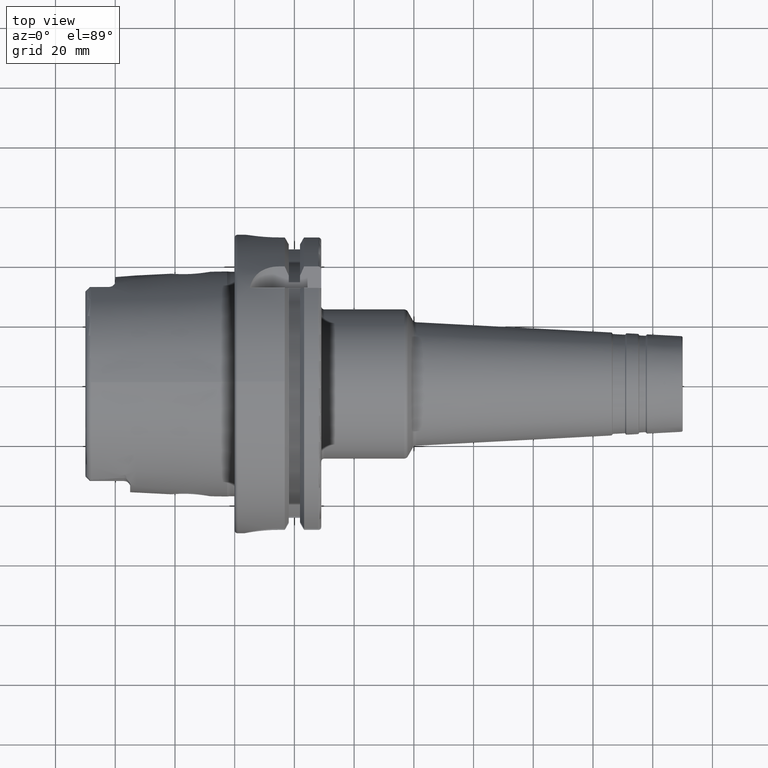
[diagram: clean part render]
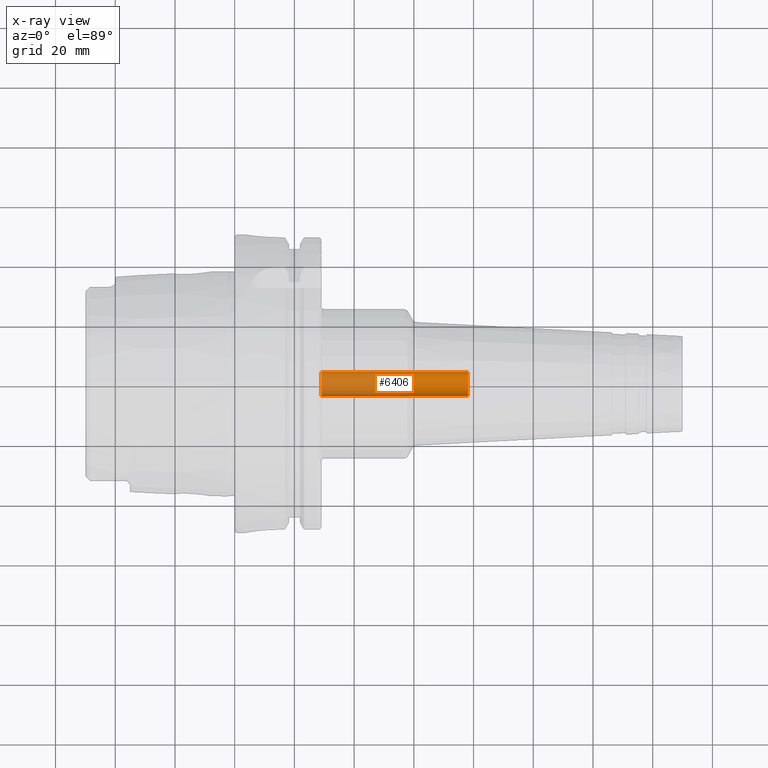
[diagram: x-ray — body ghosted, one internal face saturated and labeled with its STEP entity id]
A machine part, top view, then the same camera in x-ray: the body is ghosted and one INTERNAL B-rep face — a face not visible from any outside direction — is saturated and labeled: STEP entity #6406.
In plain terms, the highlighted cylindrical surface (edge-blend (fillet) strip) has radius 4.0005 mm, axis along (1, 0, 0).
Its self-contained STEP definition (entity closure, byte-faithful):
#2643=CARTESIAN_POINT('',(3.075781633579E0,0.E0,0.E0));
#2644=DIRECTION('',(1.E0,0.E0,0.E0));
#2645=DIRECTION('',(0.E0,-1.E0,0.E0));
#2646=AXIS2_PLACEMENT_3D('',#2643,#2644,#2645);
#2648=CARTESIAN_POINT('',(1.141547244094E0,0.E0,0.E0));
#2649=DIRECTION('',(1.E0,0.E0,0.E0));
#2650=DIRECTION('',(0.E0,-1.E0,0.E0));
#2651=AXIS2_PLACEMENT_3D('',#2648,#2649,#2650);
#2653=DIRECTION('',(1.E0,0.E0,0.E0));
#2654=VECTOR('',#2653,1.934234389485E0);
#2655=CARTESIAN_POINT('',(1.141547244094E0,1.575E-1,0.E0));
#2656=LINE('',#2655,#2654);
#2662=DIRECTION('',(1.E0,0.E0,0.E0));
#2663=VECTOR('',#2662,1.934234389485E0);
#2664=CARTESIAN_POINT('',(1.141547244094E0,-1.575E-1,0.E0));
#2665=LINE('',#2664,#2663);
#3311=CARTESIAN_POINT('',(1.141547244094E0,-1.575E-1,0.E0));
#3312=CARTESIAN_POINT('',(1.141547244094E0,1.575E-1,0.E0));
#3313=VERTEX_POINT('',#3311);
#3314=VERTEX_POINT('',#3312);
#3315=CARTESIAN_POINT('',(3.075781633579E0,-1.575E-1,0.E0));
#3316=CARTESIAN_POINT('',(3.075781633579E0,1.575E-1,0.E0));
#3317=VERTEX_POINT('',#3315);
#3318=VERTEX_POINT('',#3316);
#6392=CARTESIAN_POINT('',(8.828496062992E-1,0.E0,0.E0));
#6393=DIRECTION('',(1.E0,0.E0,0.E0));
#6394=DIRECTION('',(0.E0,-1.E0,0.E0));
#6395=AXIS2_PLACEMENT_3D('',#6392,#6393,#6394);
#6396=CYLINDRICAL_SURFACE('',#6395,1.575E-1);
#6397=ORIENTED_EDGE('',*,*,#6382,.F.);
#6399=ORIENTED_EDGE('',*,*,#6398,.F.);
#6401=ORIENTED_EDGE('',*,*,#6400,.T.);
#6403=ORIENTED_EDGE('',*,*,#6402,.T.);
#6404=EDGE_LOOP('',(#6397,#6399,#6401,#6403));
#6405=FACE_OUTER_BOUND('',#6404,.F.);
#6406=ADVANCED_FACE('',(#6405),#6396,.F.);
#2647=CIRCLE('',#2646,1.575E-1);
#2652=CIRCLE('',#2651,1.575E-1);
#6382=EDGE_CURVE('',#3317,#3318,#2647,.T.);
#6398=EDGE_CURVE('',#3313,#3317,#2665,.T.);
#6400=EDGE_CURVE('',#3313,#3314,#2652,.T.);
#6402=EDGE_CURVE('',#3314,#3318,#2656,.T.);